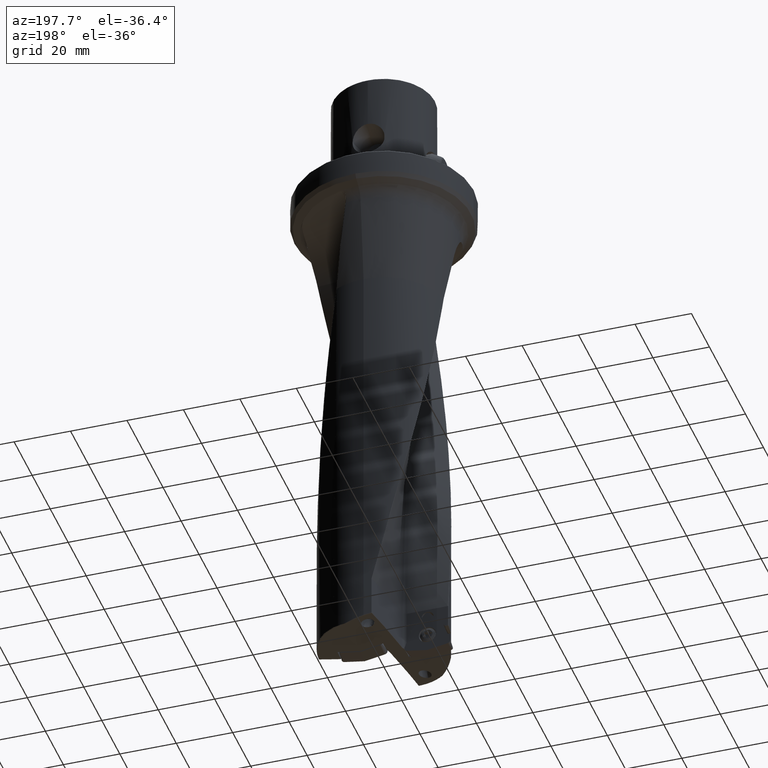
[diagram: clean part render]
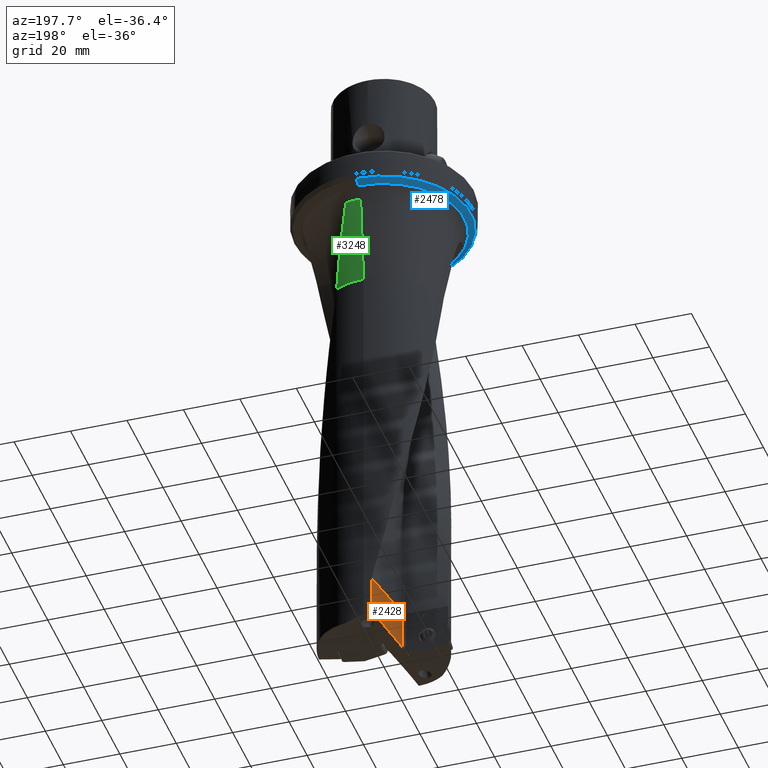
[diagram: same view with three faces highlighted in distinct colors, each labeled with its STEP entity id]
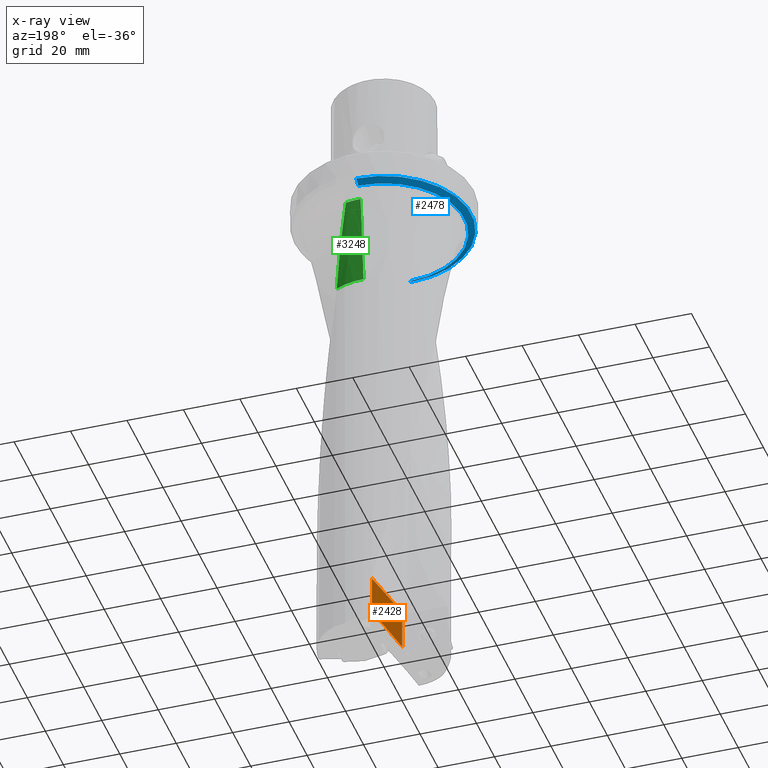
[diagram: x-ray of the same camera — body ghosted, the three highlighted faces saturated]
A machine part, auxiliary view with three faces highlighted in distinct colors.
The next image is the same camera in x-ray (body ghosted, the three faces saturated) — at least one of them is partly hidden behind the body in this view.
Their STEP definitions:

[orange] entity #2428 — the highlighted planar face has unit normal (0.9848, -0.1736, -0).
#1990=EDGE_CURVE('NONE',#4274,#2456,#5677,.T.);
#2006=EDGE_CURVE('NONE',#4908,#3890,#5693,.T.);
#2182=EDGE_CURVE('NONE',#3194,#4274,#5888,.T.);
#2428=ADVANCED_FACE('NONE',(#6152),#6153,.F.);
#2456=VERTEX_POINT('NONE',#6181);
#3194=VERTEX_POINT('NONE',#7010);
#3890=VERTEX_POINT('NONE',#7786);
#3962=EDGE_CURVE('NONE',#2456,#4116,#7864,.T.);
#4116=VERTEX_POINT('NONE',#8033);
#4274=VERTEX_POINT('NONE',#8205);
#4692=EDGE_CURVE('NONE',#4116,#3890,#8674,.T.);
#4908=VERTEX_POINT('NONE',#8911);
#5064=EDGE_CURVE('NONE',#4908,#3194,#9078,.T.);
#5677=LINE('',#10389,#10390);
#5693=B_SPLINE_CURVE_WITH_KNOTS('',1,(#10413,#10414),.UNSPECIFIED.,.F.,.F.,(2,2),(0.342376954357018,0.968833389181615),.UNSPECIFIED.);
#5888=LINE('',#11703,#11704);
#6152=FACE_OUTER_BOUND('',#12611,.T.);
#6153=PLANE('',#12612);
#6181=CARTESIAN_POINT('',(-4.49767343560233,13.3966061183911,-186.970571731929));
#7010=CARTESIAN_POINT('',(-2.90863282633067,22.40850323639,-172.999977204365));
#7786=CARTESIAN_POINT('',(-6.71628100079792,0.814257369032996,-173.0));
#7864=LINE('',#32971,#32972);
#8033=CARTESIAN_POINT('',(-6.71628100079765,0.814257369032948,-187.361772105277));
#8205=CARTESIAN_POINT('',(-2.90863282633068,22.40850323639,-187.250762464785));
#8674=LINE('',#39469,#39470);
#8911=CARTESIAN_POINT('',(-2.90887503787536,22.4071295864602,-173.0));
#9078=B_SPLINE_CURVE_WITH_KNOTS('',3,(#42125,#42126,#42127,#42128),.UNSPECIFIED.,.F.,.F.,(4,4),(0.0,0.00539095835184992),.UNSPECIFIED.);
#10389=CARTESIAN_POINT('',(-11.8603853792563,-28.3594082707346,-185.672326965078));
#10390=VECTOR('',#46273,1.0);
#10413=CARTESIAN_POINT('',(-2.90887503787536,22.4071295864602,-173.0));
#10414=CARTESIAN_POINT('',(-6.71628100079792,0.814257369033,-173.0));
#11703=CARTESIAN_POINT('',(-2.90863282633067,22.40850323639,19.1374973745012));
#11704=VECTOR('',#46503,1.0);
#12611=EDGE_LOOP('',(#46747,#46748,#46749,#46750,#46751,#46752));
#12612=AXIS2_PLACEMENT_3D('',#46753,#46754,#46755);
#32971=CARTESIAN_POINT('',(-12.2061116791986,-30.3201195501608,-188.3297773734));
#32972=VECTOR('',#48789,1.0);
#39469=CARTESIAN_POINT('',(-6.71628100079792,0.814257369032995,-189.999958985474));
#39470=VECTOR('',#49700,1.0);
#42125=CARTESIAN_POINT('',(-2.90887503787536,22.4071295864602,-173.0));
#42126=CARTESIAN_POINT('',(-2.90879393858734,22.4075895233779,-173.000005585218));
#42127=CARTESIAN_POINT('',(-2.90871320729019,22.4080473733157,-172.999997738937));
#42128=CARTESIAN_POINT('',(-2.90863282633067,22.40850323639,-172.999977204365));
#46273=DIRECTION('',(-0.17356683601285,-0.984346441568213,0.0306045161452663));
#46503=DIRECTION('',(0.0,0.0,-1.0));
#46747=ORIENTED_EDGE('',*,*,#1990,.T.);
#46748=ORIENTED_EDGE('',*,*,#3962,.T.);
#46749=ORIENTED_EDGE('',*,*,#4692,.T.);
#46750=ORIENTED_EDGE('',*,*,#2006,.F.);
#46751=ORIENTED_EDGE('',*,*,#5064,.T.);
#46752=ORIENTED_EDGE('',*,*,#2182,.T.);
#46753=CARTESIAN_POINT('',(-6.90570155918332,-0.26,-189.999958985474));
#46754=DIRECTION('',(0.984807753012209,-0.173648177666927,-0.0));
#46755=DIRECTION('',(-0.173648177666927,-0.984807753012209,0.0));
#48789=DIRECTION('',(-0.17356683601285,-0.984346441568213,-0.0306045161452653));
#49700=DIRECTION('',(0.0,0.0,1.0));

[blue] entity #2478 — the highlighted conical surface has half-angle 60 deg.
#2416=VERTEX_POINT('NONE',#6138);
#2472=VERTEX_POINT('NONE',#6201);
#2478=ADVANCED_FACE('NONE',(#6207),#6208,.T.);
#3120=EDGE_CURVE('NONE',#4840,#3964,#6922,.T.);
#3964=VERTEX_POINT('NONE',#7866);
#4050=EDGE_CURVE('NONE',#2416,#4840,#7960,.T.);
#4638=EDGE_CURVE('NONE',#2472,#3964,#8616,.T.);
#4840=VERTEX_POINT('NONE',#8838);
#4858=EDGE_CURVE('NONE',#2416,#2472,#8858,.F.);
#6138=CARTESIAN_POINT('',(0.0,28.5016682832115,-11.875425191105));
#6201=CARTESIAN_POINT('',(-3.49033240741585E-015,-28.5016682832115,-11.875425191105));
#6207=FACE_OUTER_BOUND('',#12821,.T.);
#6208=CONICAL_SURFACE('',#12822,26.2953583675272,1.0471975511966);
#6922=CIRCLE('',#23622,30.8839745962156);
#7866=CARTESIAN_POINT('',(-3.78207115218145E-015,-30.8839745962156,-10.4999999999999));
#7960=LINE('',#33128,#33129);
#8616=LINE('',#39364,#39365);
#8838=CARTESIAN_POINT('',(0.0,30.8839745962156,-10.4999999999999));
#8858=CIRCLE('',#41629,28.5016682832115);
#12821=EDGE_LOOP('',(#46807,#46808,#46809,#46810));
#12822=AXIS2_PLACEMENT_3D('',#46811,#46812,#46813);
#23622=AXIS2_PLACEMENT_3D('',#47692,#47693,#47694);
#33128=CARTESIAN_POINT('',(0.0,26.2953583675272,-13.1492388148411));
#33129=VECTOR('',#48892,1000.0);
#39364=CARTESIAN_POINT('',(-3.22014629329102E-015,-26.2953583675272,-13.1492388148411));
#39365=VECTOR('',#49644,1000.0);
#41629=AXIS2_PLACEMENT_3D('',#49929,#49930,#49931);
#46807=ORIENTED_EDGE('',*,*,#4858,.T.);
#46808=ORIENTED_EDGE('',*,*,#4638,.T.);
#46809=ORIENTED_EDGE('',*,*,#3120,.F.);
#46810=ORIENTED_EDGE('',*,*,#4050,.F.);
#46811=CARTESIAN_POINT('',(0.0,0.0,-13.1492388148411));
#46812=DIRECTION('',(-0.0,-0.0,1.0));
#46813=DIRECTION('',(0.0,1.0,0.0));
#47692=CARTESIAN_POINT('',(0.0,0.0,-10.4999999999999));
#47693=DIRECTION('',(0.0,-0.0,1.0));
#47694=DIRECTION('',(0.0,1.0,0.0));
#48892=DIRECTION('',(0.0,0.866025403784442,0.499999999999995));
#49644=DIRECTION('',(-1.06054021204602E-016,-0.866025403784442,0.499999999999995));
#49929=CARTESIAN_POINT('',(0.0,0.0,-11.875425191105));
#49930=DIRECTION('',(0.0,0.0,-1.0));
#49931=DIRECTION('',(0.0,1.0,0.0));

[green] entity #3248 — the highlighted conical surface has half-angle 6 deg.
#1972=VERTEX_POINT('NONE',#5658);
#2844=EDGE_CURVE('NONE',#3312,#5494,#6621,.T.);
#3248=ADVANCED_FACE('NONE',(#7072),#7073,.T.);
#3312=VERTEX_POINT('NONE',#7147);
#3812=VERTEX_POINT('NONE',#7698);
#4072=EDGE_CURVE('NONE',#5494,#3812,#7984,.T.);
#4536=EDGE_CURVE('NONE',#3812,#1972,#8501,.F.);
#5274=EDGE_CURVE('NONE',#1972,#3312,#9312,.F.);
#5494=VERTEX_POINT('NONE',#9556);
#5658=CARTESIAN_POINT('',(10.2912885142871,20.275188950185,-47.0));
#6621=LINE('',#19795,#19796);
#7072=FACE_OUTER_BOUND('',#24750,.T.);
#7073=CONICAL_SURFACE('',#24751,22.7375,0.10471975511966);
#7147=CARTESIAN_POINT('',(0.0,22.7375,-46.9999999999999));
#7698=CARTESIAN_POINT('',(5.40715560901257,25.4612366267901,-15.6829098936889));
#7984=CIRCLE('',#33161,26.0290588063701);
#8501=B_SPLINE_CURVE_WITH_KNOTS('',3,(#37398,#37399,#37400,#37401,#37402,#37403,#37404,#37405,#37406,#37407,#37408,#37409,#37410,#37411,#37412,#37413),.UNSPECIFIED.,.F.,.F.,(4,3,3,3,3,4),(0.0,0.0721727429822886,0.0835593522125014,0.283994370494971,0.856613380341433,1.0),.UNSPECIFIED.);
#9312=CIRCLE('',#42487,22.7375);
#9556=CARTESIAN_POINT('',(0.0,26.0290588063701,-15.6829098936889));
#19795=CARTESIAN_POINT('',(0.0,22.7375,-47.0));
#19796=VECTOR('',#47346,1000.0);
#24750=EDGE_LOOP('',(#47926,#47927,#47928,#47929));
#24751=AXIS2_PLACEMENT_3D('',#47930,#47931,#47932);
#33161=AXIS2_PLACEMENT_3D('',#48916,#48917,#48918);
#37398=CARTESIAN_POINT('',(10.2912885142871,20.2751889501849,-47.0));
#37399=CARTESIAN_POINT('',(10.2007712852055,20.4101908949762,-46.2444366410248));
#37400=CARTESIAN_POINT('',(10.112320819148,20.5428016411174,-45.4881985172012));
#37401=CARTESIAN_POINT('',(10.0172952148088,20.6770314881858,-44.7330480998196));
#37402=CARTESIAN_POINT('',(10.0023031363763,20.6982087741311,-44.6139089018697));
#37403=CARTESIAN_POINT('',(9.98725268225955,20.7193761855809,-44.4947752155537));
#37404=CARTESIAN_POINT('',(9.97218286012055,20.7405157298477,-44.3756391997713));
#37405=CARTESIAN_POINT('',(9.70691336549959,21.1126286965747,-42.2785241571227));
#37406=CARTESIAN_POINT('',(9.42859909692366,21.4794113786085,-40.1821197878731));
#37407=CARTESIAN_POINT('',(9.13389592952871,21.8413225076155,-38.0871557271614));
#37408=CARTESIAN_POINT('',(8.29196402881418,22.8752595617303,-32.1020925561237));
#37409=CARTESIAN_POINT('',(7.3266417816925,23.8646233515021,-26.1266305727436));
#37410=CARTESIAN_POINT('',(6.24317263566862,24.7840690645624,-20.1617718489008));
#37411=CARTESIAN_POINT('',(5.97186662646998,25.0143027984907,-18.668141853309));
#37412=CARTESIAN_POINT('',(5.69315553584395,25.240157562665,-17.1751803446704));
#37413=CARTESIAN_POINT('',(5.40715560901257,25.4612366267901,-15.6829098936889));
#42487=AXIS2_PLACEMENT_3D('',#50433,#50434,#50435);
#47346=DIRECTION('',(0.0,0.104528463267654,0.994521895368273));
#47926=ORIENTED_EDGE('',*,*,#5274,.T.);
#47927=ORIENTED_EDGE('',*,*,#2844,.T.);
#47928=ORIENTED_EDGE('',*,*,#4072,.T.);
#47929=ORIENTED_EDGE('',*,*,#4536,.T.);
#47930=CARTESIAN_POINT('',(0.0,0.0,-47.0));
#47931=DIRECTION('',(-0.0,-0.0,1.0));
#47932=DIRECTION('',(0.0,1.0,0.0));
#48916=CARTESIAN_POINT('',(0.0,0.0,-15.6829098936889));
#48917=DIRECTION('',(0.0,0.0,-1.0));
#48918=DIRECTION('',(0.0,1.0,0.0));
#50433=CARTESIAN_POINT('',(0.0,0.0,-46.9999999999999));
#50434=DIRECTION('',(0.0,0.0,-1.0));
#50435=DIRECTION('',(0.0,1.0,0.0));